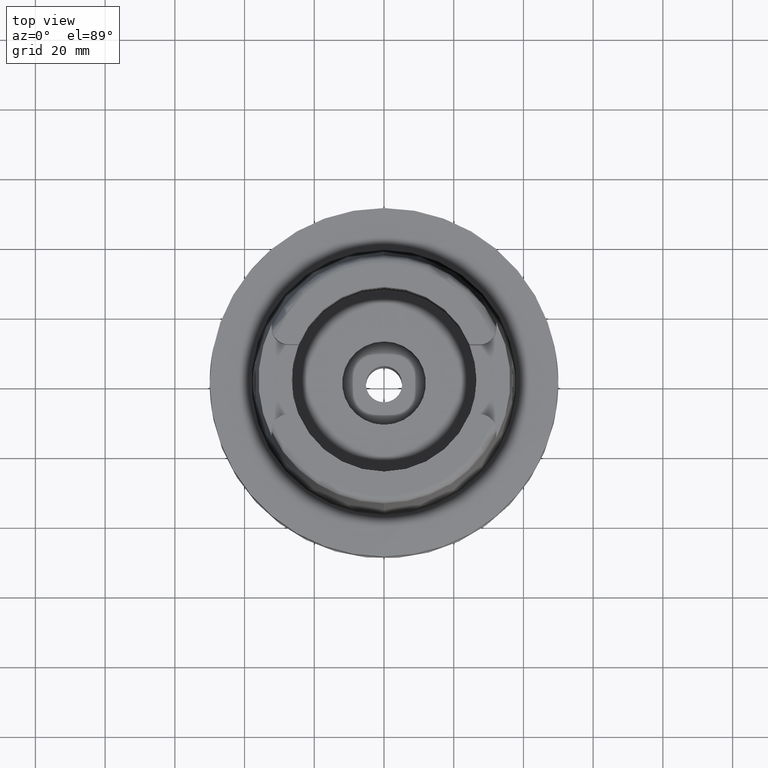
[diagram: clean part render]
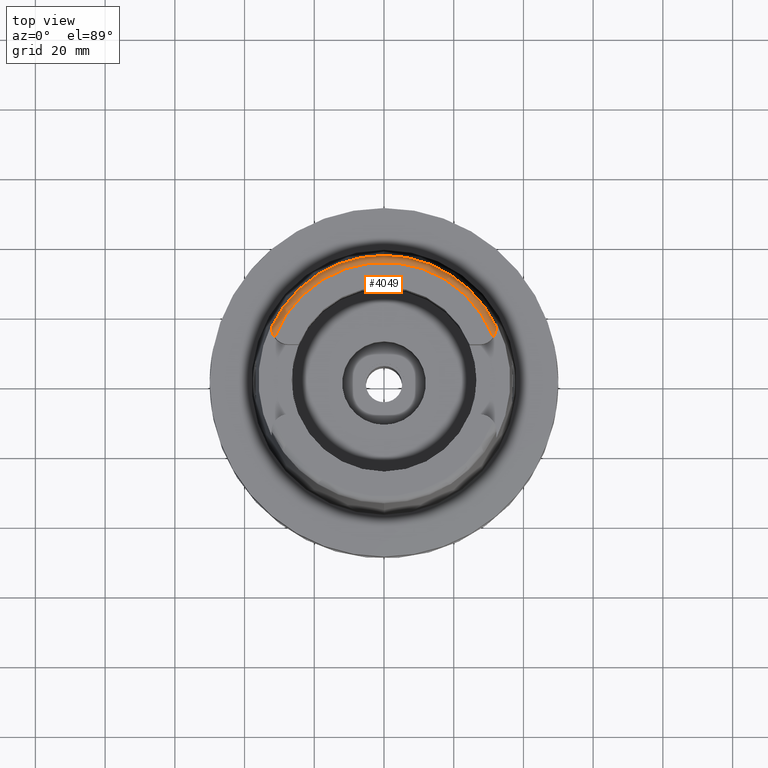
[diagram: same view with one face highlighted and labeled with its STEP entity id]
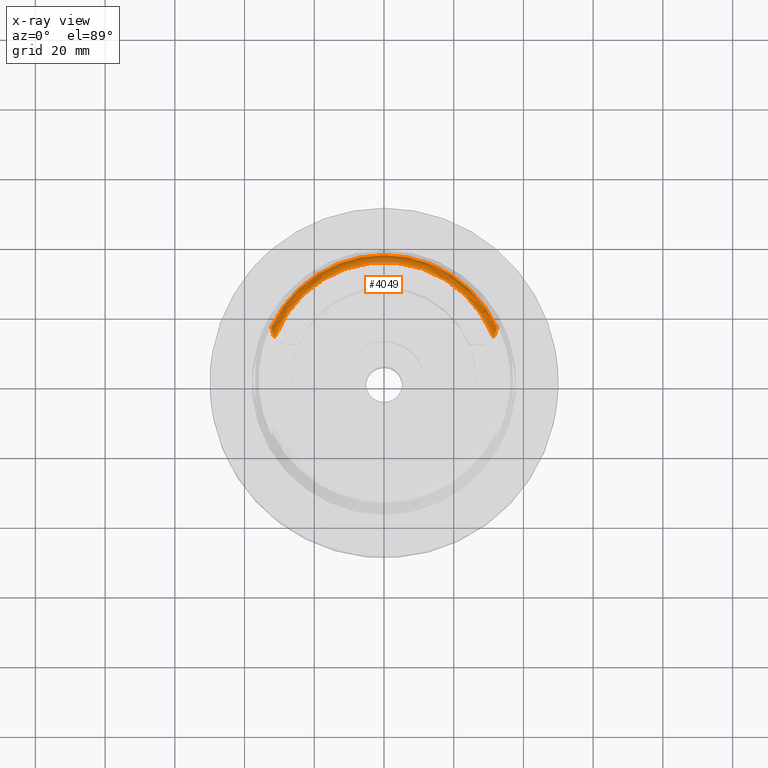
[diagram: x-ray of the same camera — body ghosted, the highlighted face saturated]
A machine part, top view. The second image highlights one B-rep face of the part: STEP entity #4049.
The next image is the same camera in x-ray: the body ghosted, the highlighted face saturated — about 0% of this face is hidden behind the body in this view.
In plain terms, the highlighted toroidal blend (fillet) surface has major radius 33.5974 mm and minor (blend) radius 2 mm.
Its self-contained STEP definition (entity closure, byte-faithful):
#60 = VERTEX_POINT ( 'NONE', #4379 ) ;
#143 = EDGE_CURVE ( 'NONE', #4692, #1342, #798, .T. ) ;
#194 = CARTESIAN_POINT ( 'NONE',  ( 32.20759287735678811, 14.23753156428514899, 49.18220209225290063 ) ) ;
#277 = CARTESIAN_POINT ( 'NONE',  ( -32.25000000000000000, 14.78380817989927820, 48.70285978126162973 ) ) ;
#379 = DIRECTION ( 'NONE',  ( 0.0000000000000000000, 0.0000000000000000000, -1.000000000000000000 ) ) ;
#471 = EDGE_CURVE ( 'NONE', #60, #4398, #4862, .T. ) ;
#557 = DIRECTION ( 'NONE',  ( -0.9060276961631030801, 0.4232183996300014628, 0.0000000000000000000 ) ) ;
#560 = CARTESIAN_POINT ( 'NONE',  ( 32.25000000000000000, 14.89000000000000057, 48.54599893821999501 ) ) ;
#565 = B_SPLINE_CURVE_WITH_KNOTS ( 'NONE', 3,
 ( #560, #2765, #5429, #1598, #2341, #2364, #1521, #1043, #2846, #1937, #2823, #194, #3747, #5015, #705, #4546, #4493, #3206, #4573, #4908, #3236, #2443, #1545, #4113, #730, #2419, #4167, #624, #3260 ),
 .UNSPECIFIED., .F., .F.,
 ( 4, 2, 2, 1, 2, 2, 2, 2, 1, 1, 2, 2, 2, 2, 2, 4 ),
 ( 0.0000000000000000000, 0.1249999999999908129, 0.1874999999999825140, 0.2187499999999785172, 0.2343749999999758249, 0.2499999999999731604, 0.3749999999999847344, 0.4374999999999922839, 0.4687499999999980571, 0.4843749999999998335, 0.4921875000000007216, 0.5000000000000016653, 0.6250000000000000000, 0.6875000000000002220, 0.7500000000000003331, 1.000000000000000000 ),
 .UNSPECIFIED. ) ;
#590 = EDGE_LOOP ( 'NONE', ( #4807, #2931, #2143, #1843, #4279, #3890, #4762 ) ) ;
#598 = AXIS2_PLACEMENT_3D ( 'NONE', #4729, #5122, #3877 ) ;
#624 = CARTESIAN_POINT ( 'NONE',  ( 31.52267915229468187, 12.31025056052405731, 50.00000000000000000 ) ) ;
#680 = CARTESIAN_POINT ( 'NONE',  ( -32.14566385042713392, 13.87760964885031179, 49.41674775394586305 ) ) ;
#705 = CARTESIAN_POINT ( 'NONE',  ( 32.15151390058159819, 13.91404532446764541, 49.39274371404869157 ) ) ;
#713 = CARTESIAN_POINT ( 'NONE',  ( -31.89302168491932932, 13.05474995318720488, 49.80573976013601367 ) ) ;
#730 = CARTESIAN_POINT ( 'NONE',  ( 31.87299193283791965, 13.00749621262882627, 49.82191023457728107 ) ) ;
#738 = CARTESIAN_POINT ( 'NONE',  ( -32.22462381860899683, 14.39227033184716653, 49.06179581112324684 ) ) ;
#798 = B_SPLINE_CURVE_WITH_KNOTS ( 'NONE', 3,
 ( #3581, #1879, #2760, #3154 ),
 .UNSPECIFIED., .F., .F.,
 ( 4, 4 ),
 ( 0.0000000000000000000, 1.000000000000000000 ),
 .UNSPECIFIED. ) ;
#1003 = CARTESIAN_POINT ( 'NONE',  ( 32.24997259584295506, 15.06456612289840002, 48.09965112258970521 ) ) ;
#1043 = CARTESIAN_POINT ( 'NONE',  ( 32.23392372521362148, 14.49404662121785492, 48.97692128787511479 ) ) ;
#1106 = CARTESIAN_POINT ( 'NONE',  ( -31.98483685494579021, 13.30316587571447329, 49.70612204564555014 ) ) ;
#1130 = CARTESIAN_POINT ( 'NONE',  ( -31.67420161503843445, 12.58525230847746279, 49.94421006557053033 ) ) ;
#1190 = CARTESIAN_POINT ( 'NONE',  ( -32.16964279573864616, 14.00026373959696180, 49.34220530464741472 ) ) ;
#1258 = B_SPLINE_CURVE_WITH_KNOTS ( 'NONE', 3,
 ( #1003, #4868, #2719, #1480 ),
 .UNSPECIFIED., .F., .F.,
 ( 4, 4 ),
 ( 0.0000000000000000000, 1.000000000000000000 ),
 .UNSPECIFIED. ) ;
#1286 = DIRECTION ( 'NONE',  ( 0.0000000000000000000, 0.0000000000000000000, -1.000000000000000000 ) ) ;
#1342 = VERTEX_POINT ( 'NONE', #1511 ) ;
#1465 = VERTEX_POINT ( 'NONE', #3706 ) ;
#1480 = CARTESIAN_POINT ( 'NONE',  ( 32.25000000000000000, 14.89000000000000057, 48.54599893821999501 ) ) ;
#1502 = CARTESIAN_POINT ( 'NONE',  ( -32.11086749165944099, 13.73291363537353860, 49.49666198044440790 ) ) ;
#1511 = CARTESIAN_POINT ( 'NONE',  ( -32.25000136840999687, 15.06443226680999992, 48.09991935130999963 ) ) ;
#1521 = CARTESIAN_POINT ( 'NONE',  ( 32.23664973288080660, 14.52805199145716841, 48.94738269648960483 ) ) ;
#1545 = CARTESIAN_POINT ( 'NONE',  ( 31.95970415731065017, 13.23009751968006498, 49.73784838472440128 ) ) ;
#1551 = CARTESIAN_POINT ( 'NONE',  ( -32.08352685868436538, 13.62532071758408136, 49.55417973943173848 ) ) ;
#1563 = EDGE_CURVE ( 'NONE', #1465, #4817, #4105, .T. ) ;
#1574 = CARTESIAN_POINT ( 'NONE',  ( -32.20555680729436432, 14.23059145753646426, 49.18522834812620204 ) ) ;
#1598 = CARTESIAN_POINT ( 'NONE',  ( 32.24487010869668069, 14.66327455196673313, 48.81965673651310311 ) ) ;
#1608 = CARTESIAN_POINT ( 'NONE',  ( -32.10615506755166138, 13.71374867219006433, 49.50711005868937775 ) ) ;
#1821 = CARTESIAN_POINT ( 'NONE',  ( 31.35385269249000473, 12.07161079256999869, 50.00000000000000000 ) ) ;
#1843 = ORIENTED_EDGE ( 'NONE', *, *, #1563, .F. ) ;
#1879 = CARTESIAN_POINT ( 'NONE',  ( -32.25000000000000000, 14.98831011544022296, 48.40078052525560537 ) ) ;
#1937 = CARTESIAN_POINT ( 'NONE',  ( 32.23105858237423149, 14.46026557183110128, 49.00575102440050301 ) ) ;
#1945 = CARTESIAN_POINT ( 'NONE',  ( -32.21891078912532436, 14.33938997296691475, 49.10345151239709338 ) ) ;
#2001 = CARTESIAN_POINT ( 'NONE',  ( -32.25000000000000000, 14.89000000000000057, 48.54599893821999501 ) ) ;
#2102 = DIRECTION ( 'NONE',  ( -0.9332215253017949186, 0.3593015233941980191, 0.0000000000000000000 ) ) ;
#2143 = ORIENTED_EDGE ( 'NONE', *, *, #4545, .F. ) ;
#2341 = CARTESIAN_POINT ( 'NONE',  ( 32.24291484022351284, 14.62376510644767080, 48.85890971573397934 ) ) ;
#2364 = CARTESIAN_POINT ( 'NONE',  ( 32.23891612633089210, 14.56060545024412711, 48.91787705742738268 ) ) ;
#2419 = CARTESIAN_POINT ( 'NONE',  ( 31.84092403363165147, 12.93258718592016798, 49.84702781040382291 ) ) ;
#2443 = CARTESIAN_POINT ( 'NONE',  ( 32.03680409875605761, 13.45459709939621362, 49.64141768832640622 ) ) ;
#2708 = CARTESIAN_POINT ( 'NONE',  ( 0.0000000000000000000, 0.0000000000000000000, 48.09987853799000135 ) ) ;
#2719 = CARTESIAN_POINT ( 'NONE',  ( 32.25000000000000000, 14.98827096344126986, 48.40083835844374960 ) ) ;
#2760 = CARTESIAN_POINT ( 'NONE',  ( -32.25000000000000000, 15.04645420437688941, 48.25208732961894498 ) ) ;
#2765 = CARTESIAN_POINT ( 'NONE',  ( 32.25000000000000000, 14.83724954130561535, 48.62391907758119913 ) ) ;
#2823 = CARTESIAN_POINT ( 'NONE',  ( 32.22066636452027666, 14.34610855688688424, 49.10097715856100109 ) ) ;
#2829 = CARTESIAN_POINT ( 'NONE',  ( -32.25000000000000000, 14.89000000000000057, 48.54599893821999501 ) ) ;
#2846 = CARTESIAN_POINT ( 'NONE',  ( 32.23199733275163226, 14.47105487330560258, 48.99662100487061878 ) ) ;
#2853 = CARTESIAN_POINT ( 'NONE',  ( -32.09723926241707659, 13.67841386359350508, 49.52608066368571116 ) ) ;
#2879 = CARTESIAN_POINT ( 'NONE',  ( -31.52066929350469948, 12.31901616488256757, 49.98884201311410180 ) ) ;
#2931 = ORIENTED_EDGE ( 'NONE', *, *, #4951, .F. ) ;
#3032 = CARTESIAN_POINT ( 'NONE',  ( 32.25000000000000000, 14.89000000000000057, 48.54599893821999501 ) ) ;
#3154 = CARTESIAN_POINT ( 'NONE',  ( -32.25000136840999687, 15.06443226680999992, 48.09991935130999963 ) ) ;
#3206 = CARTESIAN_POINT ( 'NONE',  ( 32.12419326787257035, 13.78903996966391610, 49.46535054349291727 ) ) ;
#3236 = CARTESIAN_POINT ( 'NONE',  ( 32.08052315002115051, 13.60561237133873647, 49.56723548015833813 ) ) ;
#3260 = CARTESIAN_POINT ( 'NONE',  ( 31.35385269249000473, 12.07161079256999869, 50.00000000000000000 ) ) ;
#3267 = CARTESIAN_POINT ( 'NONE',  ( -31.43912422381087879, 12.19214390373817558, 49.99999999999999289 ) ) ;
#3296 = CARTESIAN_POINT ( 'NONE',  ( -32.24708500863301452, 14.63469971676582126, 48.86068761464018451 ) ) ;
#3308 = DIRECTION ( 'NONE',  ( 0.0000000000000000000, 1.000000000000000000, 0.0000000000000000000 ) ) ;
#3581 = CARTESIAN_POINT ( 'NONE',  ( -32.25000000000000000, 14.89000000000000057, 48.54599893821999501 ) ) ;
#3698 = CARTESIAN_POINT ( 'NONE',  ( -32.19758316431953915, 14.17425480335589683, 49.22513025875019110 ) ) ;
#3706 = CARTESIAN_POINT ( 'NONE',  ( 0.0000000000000000000, 35.59494289391000166, 48.09987853799000135 ) ) ;
#3721 = CARTESIAN_POINT ( 'NONE',  ( -32.01540860067434835, 13.39321454276558576, 49.66702160728586790 ) ) ;
#3729 = B_SPLINE_CURVE_WITH_KNOTS ( 'NONE', 3,
 ( #5025, #3267, #2879, #1130, #3753, #5377, #713, #5460, #4631, #4152, #1106, #3721, #4992, #1551, #2853, #1608, #1502, #680, #1190, #3698, #1574, #4095, #1945, #738, #4583, #3296, #277, #2001 ),
 .UNSPECIFIED., .F., .F.,
 ( 4, 2, 2, 1, 1, 2, 2, 1, 1, 2, 2, 2, 2, 2, 2, 4 ),
 ( 0.0000000000000000000, 0.1249999999999963363, 0.2499999999999926725, 0.3124999999999908407, 0.3437499999999912847, 0.3593749999999901745, 0.3749999999999890643, 0.4374999999999892863, 0.4687499999999886757, 0.4843749999999883982, 0.4999999999999881206, 0.6249999999999986677, 0.6875000000000053291, 0.7187500000000065503, 0.7500000000000077716, 1.000000000000000000 ),
 .UNSPECIFIED. ) ;
#3747 = CARTESIAN_POINT ( 'NONE',  ( 32.18005305669124994, 14.06465487916900692, 49.29890871444798961 ) ) ;
#3753 = CARTESIAN_POINT ( 'NONE',  ( -31.74561872765519510, 12.72336629775231565, 49.91112029715076659 ) ) ;
#3877 = DIRECTION ( 'NONE',  ( -0.0004184165975219878483, -0.9999999124637716230, 0.0000000000000000000 ) ) ;
#3890 = ORIENTED_EDGE ( 'NONE', *, *, #143, .F. ) ;
#4028 = AXIS2_PLACEMENT_3D ( 'NONE', #2708, #4856, #557 ) ;
#4043 = VERTEX_POINT ( 'NONE', #3032 ) ;
#4049 = ADVANCED_FACE ( 'NONE', ( #5172 ), #5197, .T. ) ;
#4095 = CARTESIAN_POINT ( 'NONE',  ( -32.21578849911676201, 14.31251308461666838, 49.12406013920281111 ) ) ;
#4105 = CIRCLE ( 'NONE', #4921, 35.59494289391000166 ) ;
#4113 = CARTESIAN_POINT ( 'NONE',  ( 31.93208520905221093, 13.15560229416171012, 49.76751818088136758 ) ) ;
#4152 = CARTESIAN_POINT ( 'NONE',  ( -31.97776730518592103, 13.28273755918645627, 49.71484436365641812 ) ) ;
#4167 = CARTESIAN_POINT ( 'NONE',  ( 31.67686623519383460, 12.57376826292991190, 49.95629366011537797 ) ) ;
#4253 = CARTESIAN_POINT ( 'NONE',  ( 0.0000000000000000000, 0.0000000000000000000, 50.00000000000000000 ) ) ;
#4279 = ORIENTED_EDGE ( 'NONE', *, *, #4534, .F. ) ;
#4329 = AXIS2_PLACEMENT_3D ( 'NONE', #4253, #379, #2102 ) ;
#4379 = CARTESIAN_POINT ( 'NONE',  ( -31.35385269249000473, 12.07161079256999869, 50.00000000000000000 ) ) ;
#4398 = VERTEX_POINT ( 'NONE', #1821 ) ;
#4493 = CARTESIAN_POINT ( 'NONE',  ( 32.12967774289815992, 13.81281457564901771, 49.45192465768681700 ) ) ;
#4534 = EDGE_CURVE ( 'NONE', #1342, #1465, #5391, .T. ) ;
#4545 = EDGE_CURVE ( 'NONE', #4817, #4043, #1258, .T. ) ;
#4546 = CARTESIAN_POINT ( 'NONE',  ( 32.14192644088225137, 13.86779062096509030, 49.42031700136531924 ) ) ;
#4573 = CARTESIAN_POINT ( 'NONE',  ( 32.12048392179124789, 13.77314319383131291, 49.47427441122641767 ) ) ;
#4583 = CARTESIAN_POINT ( 'NONE',  ( -32.22737092533743208, 14.41997691526104930, 49.03933179132013009 ) ) ;
#4631 = CARTESIAN_POINT ( 'NONE',  ( -31.96423613530487984, 13.24445862238313509, 49.73087499152590851 ) ) ;
#4636 = EDGE_CURVE ( 'NONE', #60, #4692, #3729, .T. ) ;
#4692 = VERTEX_POINT ( 'NONE', #2829 ) ;
#4729 = CARTESIAN_POINT ( 'NONE',  ( 0.0000000000000000000, 0.0000000000000000000, 48.00000000000000000 ) ) ;
#4762 = ORIENTED_EDGE ( 'NONE', *, *, #4636, .F. ) ;
#4807 = ORIENTED_EDGE ( 'NONE', *, *, #471, .T. ) ;
#4817 = VERTEX_POINT ( 'NONE', #5110 ) ;
#4856 = DIRECTION ( 'NONE',  ( 0.0000000000000000000, 0.0000000000000000000, -1.000000000000000000 ) ) ;
#4862 = CIRCLE ( 'NONE', #4329, 33.59743838135999994 ) ;
#4868 = CARTESIAN_POINT ( 'NONE',  ( 32.25000000000000000, 15.04644980257009301, 48.25213023266094581 ) ) ;
#4908 = CARTESIAN_POINT ( 'NONE',  ( 32.11895534849796974, 13.76664878980814244, 49.47790336441639880 ) ) ;
#4921 = AXIS2_PLACEMENT_3D ( 'NONE', #4924, #1286, #3308 ) ;
#4924 = CARTESIAN_POINT ( 'NONE',  ( 0.0000000000000000000, 0.0000000000000000000, 48.09987853799000135 ) ) ;
#4951 = EDGE_CURVE ( 'NONE', #4043, #4398, #565, .T. ) ;
#4992 = CARTESIAN_POINT ( 'NONE',  ( -32.04912738255555382, 13.50083373417405319, 49.61724642726643708 ) ) ;
#5015 = CARTESIAN_POINT ( 'NONE',  ( 32.16954896349216142, 14.00536414970042820, 49.33695579212255211 ) ) ;
#5025 = CARTESIAN_POINT ( 'NONE',  ( -31.35385269249000473, 12.07161079256999869, 50.00000000000000000 ) ) ;
#5110 = CARTESIAN_POINT ( 'NONE',  ( 32.24997259584295506, 15.06456612289840002, 48.09965112258970521 ) ) ;
#5122 = DIRECTION ( 'NONE',  ( 0.0000000000000000000, 0.0000000000000000000, 1.000000000000000000 ) ) ;
#5172 = FACE_OUTER_BOUND ( 'NONE', #590, .T. ) ;
#5197 = TOROIDAL_SURFACE ( 'NONE', #598, 33.59743838135999994, 2.000000000000000000 ) ;
#5377 = CARTESIAN_POINT ( 'NONE',  ( -31.84562307511085777, 12.94328910674547828, 49.84359608747851667 ) ) ;
#5391 = CIRCLE ( 'NONE', #4028, 35.59494289391000166 ) ;
#5429 = CARTESIAN_POINT ( 'NONE',  ( 32.24917860124114810, 14.77394743005284994, 48.70207354457463111 ) ) ;
#5460 = CARTESIAN_POINT ( 'NONE',  ( -31.94359305798735704, 13.18720067141418006, 49.75440915551686771 ) ) ;